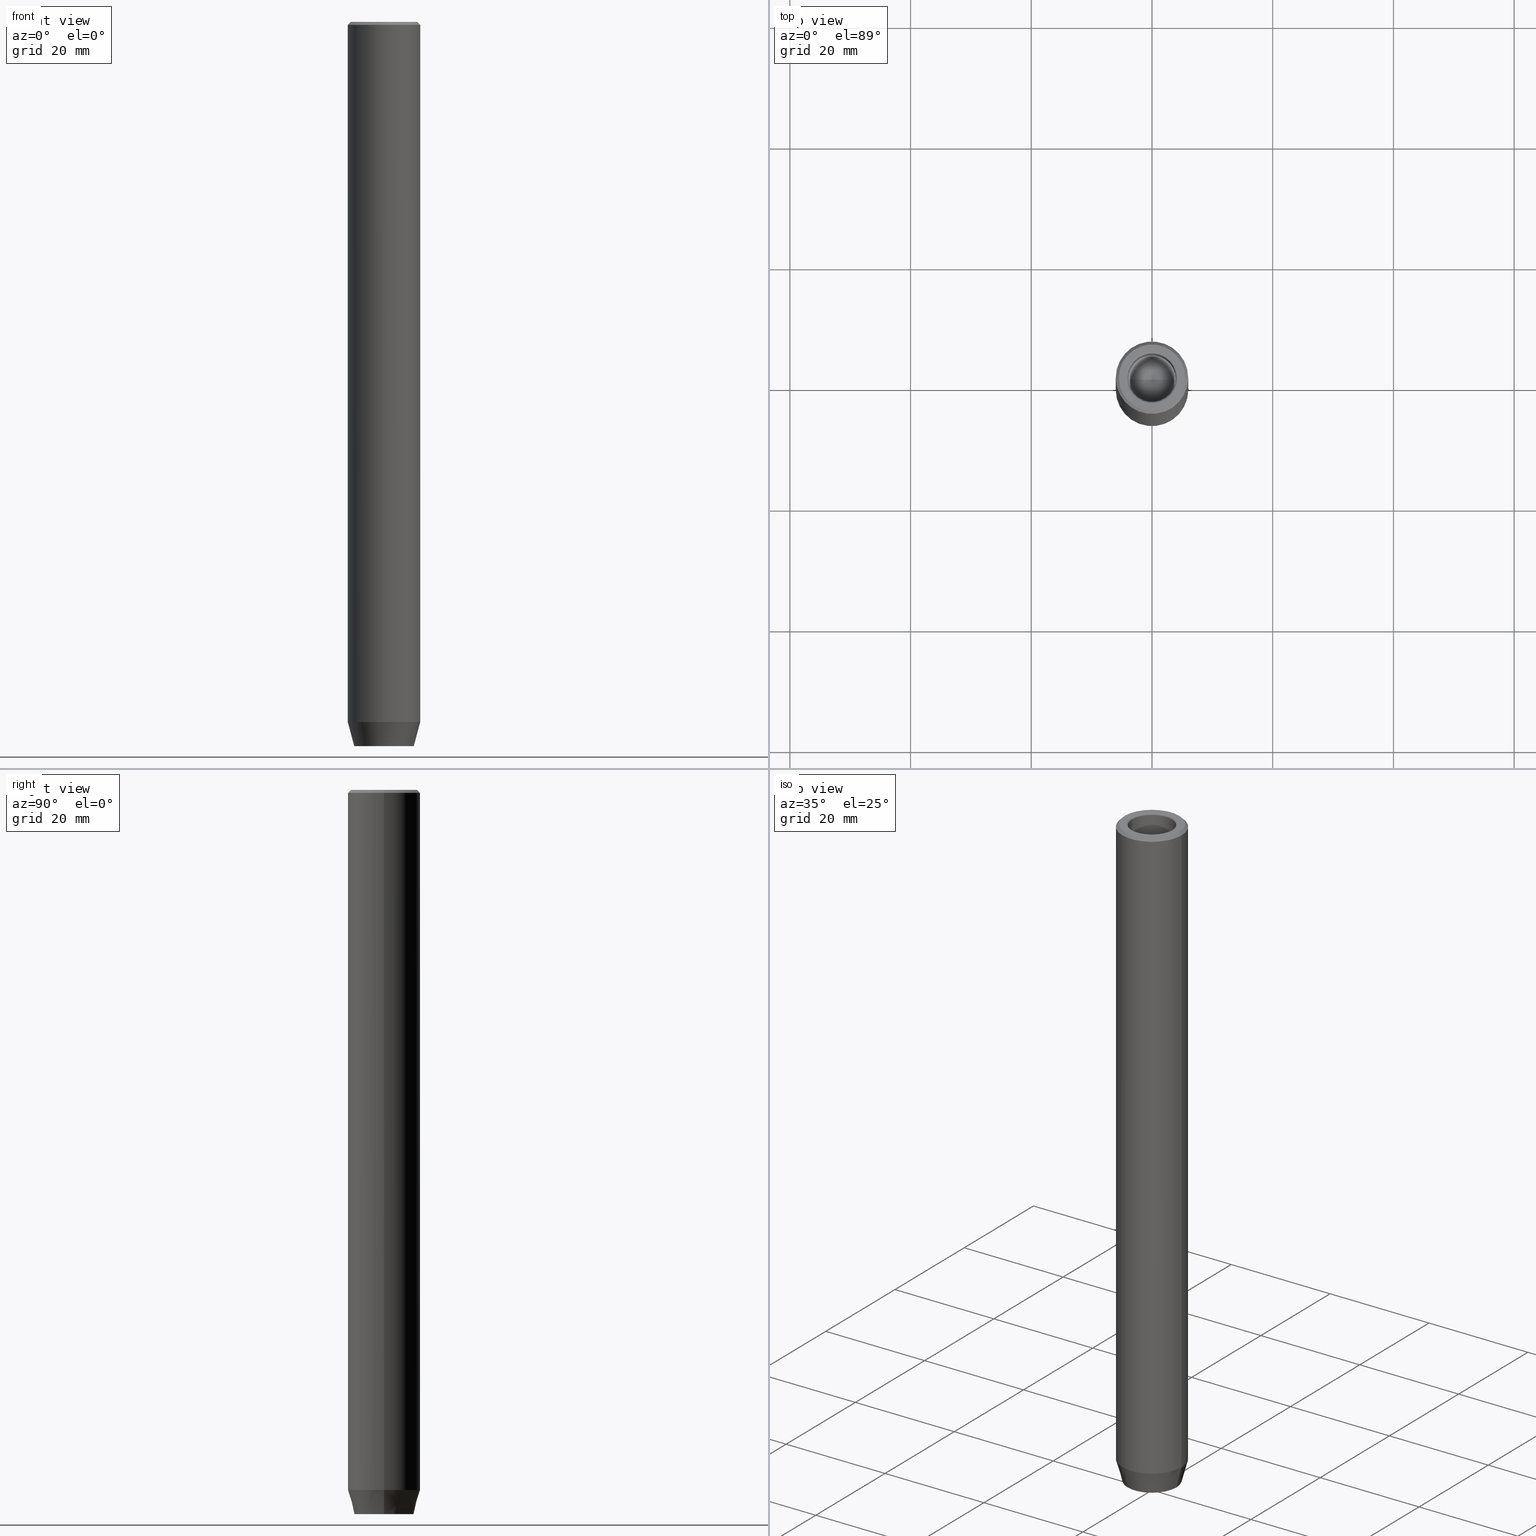
[diagram: canonical four-view strip — front | top / right | iso, engineering-drawing reading convention]
A machine part, canonical four-view strip (front | top / right | iso — engineering-drawing reading convention). The complete STEP part file that produces these views, byte-faithful:
ISO-10303-21;
HEADER;
FILE_DESCRIPTION (( 'STEP AP203' ),
    '1' );
FILE_NAME ('6bb4.STEP',
    '2024-01-02T19:11:56',
    ( '' ),
    ( '' ),
    'SwSTEP 2.0',
    'SolidWorks 2019',
    '' );
FILE_SCHEMA (( 'CONFIG_CONTROL_DESIGN' ));
ENDSEC;

DATA;
#1 = EDGE_CURVE ( 'NONE', #363, #155, #463, .T. ) ;
#2 = DIRECTION ( 'NONE',  ( -0.4999999999999998335, -0.8660254037844387076, 0.000000000000000000 ) ) ;
#3 = VECTOR ( 'NONE', #385, 1000.000000000000000 ) ;
#4 = VERTEX_POINT ( 'NONE', #422 ) ;
#5 = VERTEX_POINT ( 'NONE', #507 ) ;
#6 = CALENDAR_DATE ( 2024, 2, 1 ) ;
#7 = CC_DESIGN_PERSON_AND_ORGANIZATION_ASSIGNMENT ( #535, #344, ( #9 ) ) ;
#8 = ORIENTED_EDGE ( 'NONE', *, *, #506, .F. ) ;
#9 = PRODUCT ( '6bb4', '6bb4', '', ( #333 ) ) ;
#10 = CARTESIAN_POINT ( 'NONE',  ( -5.500000000000031974, 0.000000000000000000, 0.000000000000000000 ) ) ;
#11 = AXIS2_PLACEMENT_3D ( 'NONE', #505, #495, #459 ) ;
#12 = PERSON_AND_ORGANIZATION ( #310, #380 ) ;
#13 = DIRECTION ( 'NONE',  ( -0.8660254037844387076, -0.5000000000000001110, 0.000000000000000000 ) ) ;
#14 = CARTESIAN_POINT ( 'NONE',  ( -3.999999999999995559, 4.898587196589407898E-16, -17.00000000000000000 ) ) ;
#15 = CARTESIAN_POINT ( 'NONE',  ( 0.000000000000000000, 0.000000000000000000, 0.000000000000000000 ) ) ;
#16 = ORIENTED_EDGE ( 'NONE', *, *, #180, .F. ) ;
#17 = PRODUCT_RELATED_PRODUCT_CATEGORY ( 'detail', '', ( #9 ) ) ;
#18 = CARTESIAN_POINT ( 'NONE',  ( 0.000000000000000000, 0.000000000000000000, -0.2999999999999999889 ) ) ;
#19 = DIRECTION ( 'NONE',  ( -0.000000000000000000, -0.000000000000000000, 1.000000000000000000 ) ) ;
#20 = AXIS2_PLACEMENT_3D ( 'NONE', #135, #609, #568 ) ;
#21 = LINE ( 'NONE', #423, #336 ) ;
#22 = CARTESIAN_POINT ( 'NONE',  ( 6.000000000000000000, 0.000000000000000000, -115.9999999999999858 ) ) ;
#23 = ORIENTED_EDGE ( 'NONE', *, *, #554, .T. ) ;
#24 = EDGE_CURVE ( 'NONE', #317, #363, #432, .T. ) ;
#25 = EDGE_CURVE ( 'NONE', #341, #99, #117, .T. ) ;
#26 = ORIENTED_EDGE ( 'NONE', *, *, #339, .T. ) ;
#27 = CARTESIAN_POINT ( 'NONE',  ( 6.505213034913026604E-16, -2.886751345948127767, -114.2000000000000028 ) ) ;
#28 = CARTESIAN_POINT ( 'NONE',  ( 3.999999999999995559, 0.000000000000000000, -17.00000000000000000 ) ) ;
#29 = PLANE ( 'NONE',  #388 ) ;
#30 =( LENGTH_UNIT ( ) NAMED_UNIT ( * ) SI_UNIT ( .MILLI., .METRE. ) );
#31 = AXIS2_PLACEMENT_3D ( 'NONE', #65, #368, #615 ) ;
#32 = CIRCLE ( 'NONE', #131, 0.2999999999999999889 ) ;
#33 = CARTESIAN_POINT ( 'NONE',  ( 0.000000000000000000, 0.000000000000000000, -115.9999999999999858 ) ) ;
#34 = CARTESIAN_POINT ( 'NONE',  ( 0.000000000000000000, 0.000000000000000000, -0.2999999999999999889 ) ) ;
#35 = CARTESIAN_POINT ( 'NONE',  ( -6.000000000000000000, 7.347880794884119736E-16, -115.9999999999999858 ) ) ;
#36 = CARTESIAN_POINT ( 'NONE',  ( 0.000000000000000000, 0.000000000000000000, 0.000000000000000000 ) ) ;
#37 = EDGE_CURVE ( 'NONE', #185, #626, #269, .T. ) ;
#38 = EDGE_CURVE ( 'NONE', #5, #352, #564, .T. ) ;
#39 = DIRECTION ( 'NONE',  ( -0.2588190451025214611, 3.169619151431773569E-17, 0.9659258262890680902 ) ) ;
#40 = PERSON_AND_ORGANIZATION_ROLE ( 'creator' ) ;
#41 = AXIS2_PLACEMENT_3D ( 'NONE', #429, #285, #570 ) ;
#42 = VECTOR ( 'NONE', #120, 1000.000000000000000 ) ;
#43 = APPROVAL_PERSON_ORGANIZATION ( #446, #281, #383 ) ;
#44 = FACE_OUTER_BOUND ( 'NONE', #402, .T. ) ;
#45 = ORIENTED_EDGE ( 'NONE', *, *, #494, .T. ) ;
#46 = APPLICATION_PROTOCOL_DEFINITION ( 'international standard', 'config_control_design', 1994, #105 ) ;
#47 = DIRECTION ( 'NONE',  ( 1.000000000000000000, 0.000000000000000000, 0.000000000000000000 ) ) ;
#48 = EDGE_CURVE ( 'NONE', #352, #255, #113, .T. ) ;
#49 = EDGE_LOOP ( 'NONE', ( #256, #211 ) ) ;
#50 = DIRECTION ( 'NONE',  ( 1.000000000000000000, 0.000000000000000000, 0.000000000000000000 ) ) ;
#51 = ORIENTED_EDGE ( 'NONE', *, *, #415, .T. ) ;
#52 = ORIENTED_EDGE ( 'NONE', *, *, #534, .T. ) ;
#53 = TOROIDAL_SURFACE ( 'NONE', #265, 4.299999999999996270, 0.2999999999999999889 ) ;
#54 = ORIENTED_EDGE ( 'NONE', *, *, #328, .F. ) ;
#55 = ORIENTED_EDGE ( 'NONE', *, *, #235, .T. ) ;
#56 = ADVANCED_FACE ( 'NONE', ( #608 ), #417, .F. ) ;
#57 = ORIENTED_EDGE ( 'NONE', *, *, #548, .F. ) ;
#58 = ORIENTED_EDGE ( 'NONE', *, *, #146, .T. ) ;
#59 = EDGE_LOOP ( 'NONE', ( #26, #611, #270, #556 ) ) ;
#60 = ADVANCED_FACE ( 'NONE', ( #457 ), #371, .F. ) ;
#61 = EDGE_LOOP ( 'NONE', ( #544, #108 ) ) ;
#62 = SECURITY_CLASSIFICATION_LEVEL ( 'unclassified' ) ;
#63 = ORIENTED_EDGE ( 'NONE', *, *, #290, .T. ) ;
#64 = DIRECTION ( 'NONE',  ( -0.000000000000000000, -0.000000000000000000, 1.000000000000000000 ) ) ;
#65 = CARTESIAN_POINT ( 'NONE',  ( 0.000000000000000000, 0.000000000000000000, -115.9999999999999858 ) ) ;
#66 = DIRECTION ( 'NONE',  ( 1.000000000000000000, 0.000000000000000000, 0.000000000000000000 ) ) ;
#67 = ORIENTED_EDGE ( 'NONE', *, *, #262, .T. ) ;
#68 = CYLINDRICAL_SURFACE ( 'NONE', #442, 3.999999999999996447 ) ;
#69 = ORIENTED_EDGE ( 'NONE', *, *, #524, .F. ) ;
#70 = CARTESIAN_POINT ( 'NONE',  ( 5.500000000000031974, 6.735557395310481466E-16, 0.000000000000000000 ) ) ;
#71 = DIRECTION ( 'NONE',  ( 1.000000000000000000, 0.000000000000000000, -0.000000000000000000 ) ) ;
#72 = AXIS2_PLACEMENT_3D ( 'NONE', #239, #335, #525 ) ;
#73 = AXIS2_PLACEMENT_3D ( 'NONE', #588, #92, #50 ) ;
#74 = APPROVAL_PERSON_ORGANIZATION ( #137, #444, #95 ) ;
#75 = DIRECTION ( 'NONE',  ( 0.8660254037844385966, 0.4999999999999998890, 0.000000000000000000 ) ) ;
#76 = ADVANCED_FACE ( 'NONE', ( #212 ), #124, .F. ) ;
#77 = DIRECTION ( 'NONE',  ( -0.000000000000000000, -0.000000000000000000, 1.000000000000000000 ) ) ;
#78 = CARTESIAN_POINT ( 'NONE',  ( -4.299999999999996270, 5.265981236333614526E-16, -0.2999999999999999889 ) ) ;
#79 = EDGE_LOOP ( 'NONE', ( #296, #514, #315, #69 ) ) ;
#80 = CARTESIAN_POINT ( 'NONE',  ( 0.000000000000000000, 0.000000000000000000, 0.000000000000000000 ) ) ;
#81 = APPROVAL_STATUS ( 'not_yet_approved' ) ;
#82 = CYLINDRICAL_SURFACE ( 'NONE', #398, 6.000000000000000000 ) ;
#83 = VERTEX_POINT ( 'NONE', #470 ) ;
#84 = VECTOR ( 'NONE', #511, 1000.000000000000000 ) ;
#85 = LINE ( 'NONE', #148, #221 ) ;
#86 = VECTOR ( 'NONE', #466, 1000.000000000000000 ) ;
#87 = LINE ( 'NONE', #189, #407 ) ;
#88 = APPROVAL_STATUS ( 'not_yet_approved' ) ;
#89 = CARTESIAN_POINT ( 'NONE',  ( -1.249999999999999334, -2.165063509461096825, -120.0000000000000000 ) ) ;
#90 = DIRECTION ( 'NONE',  ( 1.000000000000000000, 0.000000000000000000, 0.000000000000000000 ) ) ;
#91 = ORIENTED_EDGE ( 'NONE', *, *, #607, .T. ) ;
#92 = DIRECTION ( 'NONE',  ( 0.000000000000000000, 0.000000000000000000, -1.000000000000000000 ) ) ;
#93 = ORIENTED_EDGE ( 'NONE', *, *, #554, .F. ) ;
#94 = ORIENTED_EDGE ( 'NONE', *, *, #48, .T. ) ;
#95 = APPROVAL_ROLE ( '' ) ;
#96 = EDGE_CURVE ( 'NONE', #353, #5, #604, .T. ) ;
#97 = VECTOR ( 'NONE', #218, 1000.000000000000000 ) ;
#98 = DIRECTION ( 'NONE',  ( 1.000000000000000000, 0.000000000000000000, 0.000000000000000000 ) ) ;
#99 = VERTEX_POINT ( 'NONE', #22 ) ;
#100 = VERTEX_POINT ( 'NONE', #309 ) ;
#101 = PERSON_AND_ORGANIZATION_ROLE ( 'classification_officer' ) ;
#102 = CARTESIAN_POINT ( 'NONE',  ( 0.000000000000000000, 0.000000000000000000, 0.000000000000000000 ) ) ;
#103 = ORIENTED_EDGE ( 'NONE', *, *, #146, .F. ) ;
#104 = DATE_AND_TIME ( #6, #409 ) ;
#105 = APPLICATION_CONTEXT ( 'configuration controlled 3d designs of mechanical parts and assemblies' ) ;
#106 = ORIENTED_EDGE ( 'NONE', *, *, #586, .F. ) ;
#107 = AXIS2_PLACEMENT_3D ( 'NONE', #633, #440, #214 ) ;
#108 = ORIENTED_EDGE ( 'NONE', *, *, #24, .T. ) ;
#109 = EDGE_CURVE ( 'NONE', #5, #595, #226, .T. ) ;
#110 = DIRECTION ( 'NONE',  ( 1.000000000000000000, 0.000000000000000000, 0.000000000000000000 ) ) ;
#111 = APPLICATION_CONTEXT ( 'configuration controlled 3d designs of mechanical parts and assemblies' ) ;
#112 = FACE_BOUND ( 'NONE', #295, .T. ) ;
#113 = LINE ( 'NONE', #312, #560 ) ;
#114 = LINE ( 'NONE', #447, #314 ) ;
#115 = EDGE_CURVE ( 'NONE', #635, #220, #504, .T. ) ;
#116 = ORIENTED_EDGE ( 'NONE', *, *, #96, .F. ) ;
#117 = CIRCLE ( 'NONE', #31, 6.000000000000000000 ) ;
#118 = DIRECTION ( 'NONE',  ( 0.5000000000000001110, -0.8660254037844387076, 0.000000000000000000 ) ) ;
#119 = CONICAL_SURFACE ( 'NONE', #632, 3.999999999999995559, 1.029744258676653645 ) ;
#120 = DIRECTION ( 'NONE',  ( -0.000000000000000000, -0.000000000000000000, 1.000000000000000000 ) ) ;
#121 = DIRECTION ( 'NONE',  ( -0.000000000000000000, -0.000000000000000000, 1.000000000000000000 ) ) ;
#122 = EDGE_CURVE ( 'NONE', #431, #220, #527, .T. ) ;
#123 = DIRECTION ( 'NONE',  ( 1.224646799147353207E-16, 1.000000000000000000, 0.000000000000000000 ) ) ;
#124 = PLANE ( 'NONE',  #356 ) ;
#125 = ADVANCED_FACE ( 'NONE', ( #484 ), #82, .T. ) ;
#126 = DIRECTION ( 'NONE',  ( 0.7071067811865426878, 8.659560562354873694E-17, -0.7071067811865524577 ) ) ;
#127 = ORIENTED_EDGE ( 'NONE', *, *, #524, .T. ) ;
#128 = EDGE_LOOP ( 'NONE', ( #103, #531, #23, #173 ) ) ;
#129 = CARTESIAN_POINT ( 'NONE',  ( 0.000000000000000000, 0.000000000000000000, 0.000000000000000000 ) ) ;
#130 = CONICAL_SURFACE ( 'NONE', #246, 6.000000000000000000, 0.2617993877991501850 ) ;
#131 = AXIS2_PLACEMENT_3D ( 'NONE', #391, #546, #206 ) ;
#132 = APPROVAL_PERSON_ORGANIZATION ( #12, #257, #167 ) ;
#133 = DIRECTION ( 'NONE',  ( 0.000000000000000000, 0.000000000000000000, -1.000000000000000000 ) ) ;
#134 = PLANE ( 'NONE',  #41 ) ;
#135 = CARTESIAN_POINT ( 'NONE',  ( 0.000000000000000000, 0.000000000000000000, -17.00000000000000000 ) ) ;
#136 = LINE ( 'NONE', #89, #433 ) ;
#137 = PERSON_AND_ORGANIZATION ( #310, #380 ) ;
#138 = EDGE_CURVE ( 'NONE', #431, #4, #520, .T. ) ;
#139 = CARTESIAN_POINT ( 'NONE',  ( -3.999999999999995559, 4.898587196589407898E-16, -17.00000000000000000 ) ) ;
#140 = ADVANCED_FACE ( 'NONE', ( #191 ), #134, .T. ) ;
#141 = AXIS2_PLACEMENT_3D ( 'NONE', #559, #121, #177 ) ;
#142 = VECTOR ( 'NONE', #627, 1000.000000000000000 ) ;
#143 = EDGE_LOOP ( 'NONE', ( #63, #232, #428, #493 ) ) ;
#144 = DIRECTION ( 'NONE',  ( 1.000000000000000000, 0.000000000000000000, 0.000000000000000000 ) ) ;
#145 = FACE_OUTER_BOUND ( 'NONE', #49, .T. ) ;
#146 = EDGE_CURVE ( 'NONE', #406, #341, #382, .T. ) ;
#147 = ADVANCED_FACE ( 'NONE', ( #617 ), #518, .F. ) ;
#148 = CARTESIAN_POINT ( 'NONE',  ( 3.999999999999995559, 0.000000000000000000, -17.00000000000000000 ) ) ;
#149 = CARTESIAN_POINT ( 'NONE',  ( 0.000000000000000000, 0.000000000000000000, -0.4999999999999752975 ) ) ;
#150 = EDGE_LOOP ( 'NONE', ( #57, #201, #533, #51 ) ) ;
#151 = COORDINATED_UNIVERSAL_TIME_OFFSET ( 1, 0, .AHEAD. ) ;
#152 = CIRCLE ( 'NONE', #519, 3.999999999999996447 ) ;
#153 = LOCAL_TIME ( 20, 11, 56.00000000000000000, #458 ) ;
#154 = CARTESIAN_POINT ( 'NONE',  ( 5.500000000000031974, 7.041719095097299615E-16, 0.000000000000000000 ) ) ;
#155 = VERTEX_POINT ( 'NONE', #329 ) ;
#156 = APPROVAL_STATUS ( 'not_yet_approved' ) ;
#157 = PLANE ( 'NONE',  #574 ) ;
#158 = ORIENTED_EDGE ( 'NONE', *, *, #628, .T. ) ;
#159 = PERSON_AND_ORGANIZATION ( #310, #380 ) ;
#160 = EDGE_CURVE ( 'NONE', #353, #394, #87, .T. ) ;
#161 = ORIENTED_EDGE ( 'NONE', *, *, #38, .F. ) ;
#162 = CIRCLE ( 'NONE', #20, 3.999999999999995559 ) ;
#163 = DIRECTION ( 'NONE',  ( -0.000000000000000000, -0.000000000000000000, -1.000000000000000000 ) ) ;
#164 = COORDINATED_UNIVERSAL_TIME_OFFSET ( 1, 0, .AHEAD. ) ;
#165 = ADVANCED_BREP_SHAPE_REPRESENTATION ( '6bb4', ( #485, #325 ), #469 ) ;
#166 = ORIENTED_EDGE ( 'NONE', *, *, #160, .T. ) ;
#167 = APPROVAL_ROLE ( '' ) ;
#168 = CC_DESIGN_PERSON_AND_ORGANIZATION_ASSIGNMENT ( #502, #553, ( #563 ) ) ;
#169 = CARTESIAN_POINT ( 'NONE',  ( -3.999999999999996447, 4.898587196589408884E-16, -0.2999999999999999889 ) ) ;
#170 = ORIENTED_EDGE ( 'NONE', *, *, #37, .F. ) ;
#171 = FACE_OUTER_BOUND ( 'NONE', #217, .T. ) ;
#172 = AXIS2_PLACEMENT_3D ( 'NONE', #129, #479, #435 ) ;
#173 = ORIENTED_EDGE ( 'NONE', *, *, #25, .F. ) ;
#174 = AXIS2_PLACEMENT_3D ( 'NONE', #637, #349, #98 ) ;
#175 = DIRECTION ( 'NONE',  ( -1.000000000000000000, 1.224646799147353207E-16, 0.000000000000000000 ) ) ;
#176 = EDGE_CURVE ( 'NONE', #255, #100, #245, .T. ) ;
#177 = DIRECTION ( 'NONE',  ( 1.000000000000000000, 0.000000000000000000, 0.000000000000000000 ) ) ;
#178 = CARTESIAN_POINT ( 'NONE',  ( 6.000000000000000000, 0.000000000000000000, -115.9999999999999858 ) ) ;
#179 = DIRECTION ( 'NONE',  ( 0.000000000000000000, -0.000000000000000000, 1.000000000000000000 ) ) ;
#180 = EDGE_CURVE ( 'NONE', #363, #317, #450, .T. ) ;
#181 = DIRECTION ( 'NONE',  ( -0.000000000000000000, -0.000000000000000000, 1.000000000000000000 ) ) ;
#182 = DIRECTION ( 'NONE',  ( 1.000000000000000000, 0.000000000000000000, 0.000000000000000000 ) ) ;
#183 = CIRCLE ( 'NONE', #73, 4.299999999999996270 ) ;
#184 = CARTESIAN_POINT ( 'NONE',  ( -2.499999999999999556, 1.443375672974064994, -120.0000000000000000 ) ) ;
#185 = VERTEX_POINT ( 'NONE', #434 ) ;
#186 = DIRECTION ( 'NONE',  ( -0.000000000000000000, -0.000000000000000000, 1.000000000000000000 ) ) ;
#187 = COORDINATED_UNIVERSAL_TIME_OFFSET ( 1, 0, .AHEAD. ) ;
#188 = CC_DESIGN_PERSON_AND_ORGANIZATION_ASSIGNMENT ( #159, #301, ( #563 ) ) ;
#189 = CARTESIAN_POINT ( 'NONE',  ( 0.000000000000000000, 2.886751345948129543, -114.2000000000000028 ) ) ;
#190 = CARTESIAN_POINT ( 'NONE',  ( 2.499999999999999556, 0.000000000000000000, -120.0000000000000000 ) ) ;
#191 = FACE_OUTER_BOUND ( 'NONE', #228, .T. ) ;
#192 = CARTESIAN_POINT ( 'NONE',  ( 1.250000000000000222, 2.165063509461097269, -120.0000000000000000 ) ) ;
#193 = AXIS2_PLACEMENT_3D ( 'NONE', #78, #123, #175 ) ;
#194 = LOCAL_TIME ( 20, 11, 56.00000000000000000, #164 ) ;
#195 = ORIENTED_EDGE ( 'NONE', *, *, #501, .F. ) ;
#196 = CARTESIAN_POINT ( 'NONE',  ( -6.000000000000000000, 7.347880794884119736E-16, -115.9999999999999858 ) ) ;
#197 = ORIENTED_EDGE ( 'NONE', *, *, #1, .T. ) ;
#198 = PRODUCT_DEFINITION ( 'NEZN�M�', '', #563, #513 ) ;
#199 = DIRECTION ( 'NONE',  ( -0.000000000000000000, -0.000000000000000000, 1.000000000000000000 ) ) ;
#200 = DIRECTION ( 'NONE',  ( 1.000000000000000000, 0.000000000000000000, 0.000000000000000000 ) ) ;
#201 = ORIENTED_EDGE ( 'NONE', *, *, #122, .F. ) ;
#202 = DIRECTION ( 'NONE',  ( 0.8660254037844385966, -0.4999999999999999445, 0.000000000000000000 ) ) ;
#203 = CARTESIAN_POINT ( 'NONE',  ( 2.499999999999999556, -1.443375672974064550, -114.2000000000000028 ) ) ;
#204 = ORIENTED_EDGE ( 'NONE', *, *, #109, .T. ) ;
#205 = CIRCLE ( 'NONE', #107, 4.928203230275505220 ) ;
#206 = DIRECTION ( 'NONE',  ( 0.000000000000000000, 0.000000000000000000, -1.000000000000000000 ) ) ;
#207 = ORIENTED_EDGE ( 'NONE', *, *, #487, .F. ) ;
#208 = ORIENTED_EDGE ( 'NONE', *, *, #109, .F. ) ;
#209 = ORIENTED_EDGE ( 'NONE', *, *, #328, .T. ) ;
#210 = AXIS2_PLACEMENT_3D ( 'NONE', #233, #629, #144 ) ;
#211 = ORIENTED_EDGE ( 'NONE', *, *, #348, .F. ) ;
#212 = FACE_OUTER_BOUND ( 'NONE', #547, .T. ) ;
#213 = ADVANCED_FACE ( 'NONE', ( #579, #620 ), #476, .T. ) ;
#214 = DIRECTION ( 'NONE',  ( 1.000000000000000000, 0.000000000000000000, 0.000000000000000000 ) ) ;
#215 = DIRECTION ( 'NONE',  ( -0.8571673007021118895, 1.049727191138618079E-16, 0.5150380749100549327 ) ) ;
#216 = DIRECTION ( 'NONE',  ( -0.000000000000000000, -0.000000000000000000, 1.000000000000000000 ) ) ;
#217 = EDGE_LOOP ( 'NONE', ( #551, #16, #197, #358 ) ) ;
#218 = DIRECTION ( 'NONE',  ( 0.2588190451025214611, 0.000000000000000000, 0.9659258262890680902 ) ) ;
#219 = EDGE_LOOP ( 'NONE', ( #207, #260, #45, #67 ) ) ;
#220 = VERTEX_POINT ( 'NONE', #139 ) ;
#221 = VECTOR ( 'NONE', #636, 1000.000000000000000 ) ;
#222 = DIRECTION ( 'NONE',  ( -0.8660254037844387076, -0.5000000000000001110, 0.000000000000000000 ) ) ;
#223 = CC_DESIGN_APPROVAL ( #444, ( #198 ) ) ;
#224 = DIRECTION ( 'NONE',  ( -0.000000000000000000, -0.000000000000000000, 1.000000000000000000 ) ) ;
#225 = ADVANCED_FACE ( 'NONE', ( #374 ), #130, .T. ) ;
#226 = LINE ( 'NONE', #426, #234 ) ;
#227 = LINE ( 'NONE', #190, #3 ) ;
#228 = EDGE_LOOP ( 'NONE', ( #52, #250, #472, #94, #584, #475 ) ) ;
#229 = FACE_OUTER_BOUND ( 'NONE', #436, .T. ) ;
#230 = FACE_OUTER_BOUND ( 'NONE', #150, .T. ) ;
#231 = EDGE_LOOP ( 'NONE', ( #55, #452, #253, #91 ) ) ;
#232 = ORIENTED_EDGE ( 'NONE', *, *, #176, .F. ) ;
#233 = CARTESIAN_POINT ( 'NONE',  ( 0.000000000000000000, 0.000000000000000000, -17.00000000000000000 ) ) ;
#234 = VECTOR ( 'NONE', #163, 1000.000000000000000 ) ;
#235 = EDGE_CURVE ( 'NONE', #499, #394, #384, .T. ) ;
#236 = TOROIDAL_SURFACE ( 'NONE', #623, 4.299999999999996270, 0.2999999999999999889 ) ;
#237 = CC_DESIGN_SECURITY_CLASSIFICATION ( #288, ( #563 ) ) ;
#238 = DATE_AND_TIME ( #291, #266 ) ;
#239 = CARTESIAN_POINT ( 'NONE',  ( 0.000000000000000000, 0.000000000000000000, -17.00000000000000000 ) ) ;
#240 = CARTESIAN_POINT ( 'NONE',  ( -4.827031923828040939E-15, 0.000000000000000000, -19.40344247611024286 ) ) ;
#241 = ADVANCED_FACE ( 'NONE', ( #532 ), #522, .T. ) ;
#242 = DIRECTION ( 'NONE',  ( -0.000000000000000000, -0.000000000000000000, 1.000000000000000000 ) ) ;
#243 = ADVANCED_FACE ( 'NONE', ( #387 ), #29, .F. ) ;
#244 = EDGE_CURVE ( 'NONE', #100, #626, #136, .T. ) ;
#245 = LINE ( 'NONE', #289, #441 ) ;
#246 = AXIS2_PLACEMENT_3D ( 'NONE', #33, #324, #625 ) ;
#247 = CALENDAR_DATE ( 2024, 2, 1 ) ;
#248 = VECTOR ( 'NONE', #75, 1000.000000000000227 ) ;
#249 = CARTESIAN_POINT ( 'NONE',  ( 0.000000000000000000, 4.928203230275505220, -120.0000000000000000 ) ) ;
#250 = ORIENTED_EDGE ( 'NONE', *, *, #96, .T. ) ;
#251 = DATE_TIME_ROLE ( 'creation_date' ) ;
#252 = FACE_OUTER_BOUND ( 'NONE', #128, .T. ) ;
#253 = ORIENTED_EDGE ( 'NONE', *, *, #534, .F. ) ;
#254 = CARTESIAN_POINT ( 'NONE',  ( -2.500000000000000000, 7.511572993685795156E-16, -120.0000000000000000 ) ) ;
#255 = VERTEX_POINT ( 'NONE', #27 ) ;
#256 = ORIENTED_EDGE ( 'NONE', *, *, #308, .F. ) ;
#257 = APPROVAL ( #156, 'NEUR�EN�' ) ;
#258 = ADVANCED_FACE ( 'NONE', ( #229 ), #528, .T. ) ;
#259 = EDGE_LOOP ( 'NONE', ( #343, #305 ) ) ;
#260 = ORIENTED_EDGE ( 'NONE', *, *, #25, .T. ) ;
#261 = EDGE_LOOP ( 'NONE', ( #8, #569, #127, #445 ) ) ;
#262 = EDGE_CURVE ( 'NONE', #377, #155, #408, .T. ) ;
#263 = ORIENTED_EDGE ( 'NONE', *, *, #244, .T. ) ;
#264 = DIRECTION ( 'NONE',  ( 1.000000000000000000, 0.000000000000000000, 0.000000000000000000 ) ) ;
#265 = AXIS2_PLACEMENT_3D ( 'NONE', #18, #418, #515 ) ;
#266 = LOCAL_TIME ( 20, 11, 56.00000000000000000, #151 ) ;
#267 = CARTESIAN_POINT ( 'NONE',  ( 1.250000000000000222, 2.165063509461097269, -114.2000000000000028 ) ) ;
#268 = CARTESIAN_POINT ( 'NONE',  ( 1.250000000000000222, 2.165063509461097269, -114.2000000000000028 ) ) ;
#269 = LINE ( 'NONE', #555, #273 ) ;
#270 = ORIENTED_EDGE ( 'NONE', *, *, #303, .T. ) ;
#271 = ADVANCED_FACE ( 'NONE', ( #536 ), #393, .F. ) ;
#272 = DIRECTION ( 'NONE',  ( -1.000000000000000000, 0.000000000000000000, 0.000000000000000000 ) ) ;
#273 = VECTOR ( 'NONE', #413, 1000.000000000000000 ) ;
#274 = AXIS2_PLACEMENT_3D ( 'NONE', #268, #613, #565 ) ;
#275 = DIRECTION ( 'NONE',  ( -0.000000000000000000, 0.000000000000000000, -1.000000000000000000 ) ) ;
#276 = CARTESIAN_POINT ( 'NONE',  ( 6.000000000000000000, 0.000000000000000000, 0.000000000000000000 ) ) ;
#277 = ORIENTED_EDGE ( 'NONE', *, *, #176, .T. ) ;
#278 = DIRECTION ( 'NONE',  ( -3.004629197474318063E-16, -1.000000000000000000, 0.000000000000000000 ) ) ;
#279 = CARTESIAN_POINT ( 'NONE',  ( 0.000000000000000000, 0.000000000000000000, -17.00000000000000000 ) ) ;
#280 = ORIENTED_EDGE ( 'NONE', *, *, #607, .F. ) ;
#281 = APPROVAL ( #81, 'NEUR�EN�' ) ;
#282 = CARTESIAN_POINT ( 'NONE',  ( 0.000000000000000000, 0.000000000000000000, 0.000000000000000000 ) ) ;
#283 = ADVANCED_FACE ( 'NONE', ( #252 ), #323, .T. ) ;
#284 = DIRECTION ( 'NONE',  ( 3.004629197474318063E-16, 1.000000000000000000, 0.000000000000000000 ) ) ;
#285 = DIRECTION ( 'NONE',  ( 0.000000000000000000, 0.000000000000000000, -1.000000000000000000 ) ) ;
#286 = VECTOR ( 'NONE', #39, 1000.000000000000000 ) ;
#287 = VECTOR ( 'NONE', #492, 1000.000000000000000 ) ;
#288 = SECURITY_CLASSIFICATION ( '', '', #62 ) ;
#289 = CARTESIAN_POINT ( 'NONE',  ( 6.505213034913026604E-16, -2.886751345948127767, -114.2000000000000028 ) ) ;
#290 = EDGE_CURVE ( 'NONE', #599, #100, #114, .T. ) ;
#291 = CALENDAR_DATE ( 2024, 2, 1 ) ;
#292 = CARTESIAN_POINT ( 'NONE',  ( 3.999999999999996447, 0.000000000000000000, 0.000000000000000000 ) ) ;
#293 = APPROVAL_DATE_TIME ( #238, #444 ) ;
#294 = CARTESIAN_POINT ( 'NONE',  ( 0.000000000000000000, 0.000000000000000000, -115.9999999999999858 ) ) ;
#295 = EDGE_LOOP ( 'NONE', ( #334, #54, #491, #575, #106, #619 ) ) ;
#296 = ORIENTED_EDGE ( 'NONE', *, *, #467, .F. ) ;
#297 = DATE_AND_TIME ( #247, #510 ) ;
#298 = AXIS2_PLACEMENT_3D ( 'NONE', #294, #509, #264 ) ;
#299 = DIRECTION ( 'NONE',  ( 0.000000000000000000, 0.000000000000000000, -1.000000000000000000 ) ) ;
#300 = EDGE_LOOP ( 'NONE', ( #373, #208, #116, #166 ) ) ;
#301 = PERSON_AND_ORGANIZATION_ROLE ( 'design_supplier' ) ;
#302 = LINE ( 'NONE', #254, #287 ) ;
#303 = EDGE_CURVE ( 'NONE', #155, #377, #306, .T. ) ;
#304 = VERTEX_POINT ( 'NONE', #539 ) ;
#305 = ORIENTED_EDGE ( 'NONE', *, *, #318, .T. ) ;
#306 = CIRCLE ( 'NONE', #550, 6.000000000000000000 ) ;
#307 = ORIENTED_EDGE ( 'NONE', *, *, #308, .T. ) ;
#308 = EDGE_CURVE ( 'NONE', #83, #406, #561, .T. ) ;
#309 = CARTESIAN_POINT ( 'NONE',  ( 6.505213034913026604E-16, -2.886751345948127767, -120.0000000000000000 ) ) ;
#310 = PERSON ( 'NEUR�EN�', 'NEUR�EN�', 'NEUR�EN�', ('NEUR�EN�'), ('NEUR�EN�'), ('NEUR�EN�') ) ;
#311 = CARTESIAN_POINT ( 'NONE',  ( 0.000000000000000000, 2.886751345948129543, -120.0000000000000000 ) ) ;
#312 = CARTESIAN_POINT ( 'NONE',  ( 1.249999999999999778, -2.165063509461096380, -114.2000000000000028 ) ) ;
#313 = PLANE ( 'NONE',  #366 ) ;
#314 = VECTOR ( 'NONE', #13, 999.9999999999998863 ) ;
#315 = ORIENTED_EDGE ( 'NONE', *, *, #375, .T. ) ;
#316 = LINE ( 'NONE', #178, #97 ) ;
#317 = VERTEX_POINT ( 'NONE', #154 ) ;
#318 = EDGE_CURVE ( 'NONE', #404, #503, #378, .T. ) ;
#319 = CARTESIAN_POINT ( 'NONE',  ( -1.250000000000000000, 2.165063509461097269, -114.2000000000000028 ) ) ;
#320 = CARTESIAN_POINT ( 'NONE',  ( 1.249999999999999778, -2.165063509461096380, -114.2000000000000028 ) ) ;
#321 = FACE_OUTER_BOUND ( 'NONE', #350, .T. ) ;
#322 = VECTOR ( 'NONE', #215, 1000.000000000000000 ) ;
#323 = CONICAL_SURFACE ( 'NONE', #298, 6.000000000000000000, 0.2617993877991501850 ) ;
#324 = DIRECTION ( 'NONE',  ( -0.000000000000000000, -0.000000000000000000, 1.000000000000000000 ) ) ;
#325 = AXIS2_PLACEMENT_3D ( 'NONE', #36, #340, #90 ) ;
#326 = LINE ( 'NONE', #517, #357 ) ;
#327 = CC_DESIGN_PERSON_AND_ORGANIZATION_ASSIGNMENT ( #486, #40, ( #198 ) ) ;
#328 = EDGE_CURVE ( 'NONE', #626, #499, #302, .T. ) ;
#329 = CARTESIAN_POINT ( 'NONE',  ( -6.000000000000000000, 7.347880794884119736E-16, -0.4999999999999752975 ) ) ;
#330 = CARTESIAN_POINT ( 'NONE',  ( 0.000000000000000000, 0.000000000000000000, -0.2999999999999999889 ) ) ;
#331 = CARTESIAN_POINT ( 'NONE',  ( 0.000000000000000000, 0.000000000000000000, 0.000000000000000000 ) ) ;
#332 = ORIENTED_EDGE ( 'NONE', *, *, #318, .F. ) ;
#333 = MECHANICAL_CONTEXT ( 'NONE', #111, 'mechanical' ) ;
#334 = ORIENTED_EDGE ( 'NONE', *, *, #235, .F. ) ;
#335 = DIRECTION ( 'NONE',  ( -0.000000000000000000, -0.000000000000000000, 1.000000000000000000 ) ) ;
#336 = VECTOR ( 'NONE', #521, 1000.000000000000114 ) ;
#337 = CC_DESIGN_APPROVAL ( #281, ( #563 ) ) ;
#338 = DIRECTION ( 'NONE',  ( -0.000000000000000000, -0.000000000000000000, -1.000000000000000000 ) ) ;
#339 = EDGE_CURVE ( 'NONE', #99, #341, #529, .T. ) ;
#340 = DIRECTION ( 'NONE',  ( 0.000000000000000000, 0.000000000000000000, 1.000000000000000000 ) ) ;
#341 = VERTEX_POINT ( 'NONE', #196 ) ;
#342 = DIRECTION ( 'NONE',  ( 0.000000000000000000, 0.000000000000000000, -1.000000000000000000 ) ) ;
#343 = ORIENTED_EDGE ( 'NONE', *, *, #355, .T. ) ;
#344 = PERSON_AND_ORGANIZATION_ROLE ( 'design_owner' ) ;
#345 = DIRECTION ( 'NONE',  ( 0.000000000000000000, 0.000000000000000000, -1.000000000000000000 ) ) ;
#346 = EDGE_LOOP ( 'NONE', ( #638, #158, #354 ) ) ;
#347 = VECTOR ( 'NONE', #202, 1000.000000000000114 ) ;
#348 = EDGE_CURVE ( 'NONE', #406, #83, #205, .T. ) ;
#349 = DIRECTION ( 'NONE',  ( -0.000000000000000000, -0.000000000000000000, 1.000000000000000000 ) ) ;
#350 = EDGE_LOOP ( 'NONE', ( #332, #591, #601, #454 ) ) ;
#351 = CARTESIAN_POINT ( 'NONE',  ( -5.500000000000031974, 0.000000000000000000, 0.000000000000000000 ) ) ;
#352 = VERTEX_POINT ( 'NONE', #203 ) ;
#353 = VERTEX_POINT ( 'NONE', #590 ) ;
#354 = ORIENTED_EDGE ( 'NONE', *, *, #122, .T. ) ;
#355 = EDGE_CURVE ( 'NONE', #503, #404, #183, .T. ) ;
#356 = AXIS2_PLACEMENT_3D ( 'NONE', #516, #71, #275 ) ;
#357 = VECTOR ( 'NONE', #224, 1000.000000000000000 ) ;
#358 = ORIENTED_EDGE ( 'NONE', *, *, #262, .F. ) ;
#359 = CALENDAR_DATE ( 2024, 2, 1 ) ;
#360 = PRODUCT_DEFINITION_SHAPE ( 'NONE', 'NONE',  #198 ) ;
#361 = CARTESIAN_POINT ( 'NONE',  ( 0.000000000000000000, 0.000000000000000000, 0.000000000000000000 ) ) ;
#362 = CARTESIAN_POINT ( 'NONE',  ( -4.299999999999996270, 5.265981236333614526E-16, 0.000000000000000000 ) ) ;
#363 = VERTEX_POINT ( 'NONE', #351 ) ;
#364 = DIRECTION ( 'NONE',  ( -0.000000000000000000, -0.000000000000000000, 1.000000000000000000 ) ) ;
#365 = CC_DESIGN_DATE_AND_TIME_ASSIGNMENT ( #104, #399, ( #288 ) ) ;
#366 = AXIS2_PLACEMENT_3D ( 'NONE', #249, #342, #606 ) ;
#367 = UNCERTAINTY_MEASURE_WITH_UNIT (LENGTH_MEASURE( 1.000000000000000082E-05 ), #30, 'distance_accuracy_value', 'NONE');
#368 = DIRECTION ( 'NONE',  ( -0.000000000000000000, -0.000000000000000000, 1.000000000000000000 ) ) ;
#369 = ADVANCED_FACE ( 'NONE', ( #44 ), #157, .F. ) ;
#370 = DIRECTION ( 'NONE',  ( 1.000000000000000000, 0.000000000000000000, 0.000000000000000000 ) ) ;
#371 = PLANE ( 'NONE',  #489 ) ;
#372 = DIRECTION ( 'NONE',  ( -0.000000000000000000, -0.000000000000000000, 1.000000000000000000 ) ) ;
#373 = ORIENTED_EDGE ( 'NONE', *, *, #639, .T. ) ;
#374 = FACE_OUTER_BOUND ( 'NONE', #477, .T. ) ;
#375 = EDGE_CURVE ( 'NONE', #503, #4, #32, .T. ) ;
#376 = CARTESIAN_POINT ( 'NONE',  ( 2.499999999999999556, -1.443375672974064550, -114.2000000000000028 ) ) ;
#377 = VERTEX_POINT ( 'NONE', #401 ) ;
#378 = CIRCLE ( 'NONE', #389, 4.299999999999996270 ) ;
#379 = CARTESIAN_POINT ( 'NONE',  ( -1.250000000000000000, 2.165063509461097269, -120.0000000000000000 ) ) ;
#380 = ORGANIZATION ( 'NEUR�EN�', 'NEUR�EN�', '' ) ;
#381 = LINE ( 'NONE', #376, #508 ) ;
#382 = LINE ( 'NONE', #35, #286 ) ;
#383 = APPROVAL_ROLE ( '' ) ;
#384 = LINE ( 'NONE', #379, #600 ) ;
#385 = DIRECTION ( 'NONE',  ( 0.000000000000000000, -1.000000000000000000, 0.000000000000000000 ) ) ;
#386 = ADVANCED_FACE ( 'NONE', ( #112, #145 ), #313, .T. ) ;
#387 = FACE_OUTER_BOUND ( 'NONE', #456, .T. ) ;
#388 = AXIS2_PLACEMENT_3D ( 'NONE', #576, #482, #278 ) ;
#389 = AXIS2_PLACEMENT_3D ( 'NONE', #102, #597, #543 ) ;
#390 = LINE ( 'NONE', #192, #347 ) ;
#391 = CARTESIAN_POINT ( 'NONE',  ( 4.299999999999996270, 0.000000000000000000, -0.2999999999999999889 ) ) ;
#392 = DIRECTION ( 'NONE',  ( 1.000000000000000000, 0.000000000000000000, 0.000000000000000000 ) ) ;
#393 = PLANE ( 'NONE',  #11 ) ;
#394 = VERTEX_POINT ( 'NONE', #311 ) ;
#395 = CC_DESIGN_DATE_AND_TIME_ASSIGNMENT ( #297, #251, ( #198 ) ) ;
#396 = DIRECTION ( 'NONE',  ( -1.000000000000000000, 0.000000000000000000, 0.000000000000000000 ) ) ;
#397 = VERTEX_POINT ( 'NONE', #169 ) ;
#398 = AXIS2_PLACEMENT_3D ( 'NONE', #80, #186, #473 ) ;
#399 = DATE_TIME_ROLE ( 'classification_date' ) ;
#400 = AXIS2_PLACEMENT_3D ( 'NONE', #149, #299, #47 ) ;
#401 = CARTESIAN_POINT ( 'NONE',  ( 6.000000000000000000, 0.000000000000000000, -0.4999999999999752975 ) ) ;
#402 = EDGE_LOOP ( 'NONE', ( #263, #170, #195, #277 ) ) ;
#403 = APPROVAL_DATE_TIME ( #411, #257 ) ;
#404 = VERTEX_POINT ( 'NONE', #362 ) ;
#405 = SHAPE_DEFINITION_REPRESENTATION ( #360, #165 ) ;
#406 = VERTEX_POINT ( 'NONE', #557 ) ;
#407 = VECTOR ( 'NONE', #338, 1000.000000000000000 ) ;
#408 = CIRCLE ( 'NONE', #400, 6.000000000000000000 ) ;
#409 = LOCAL_TIME ( 20, 11, 56.00000000000000000, #603 ) ;
#410 = DIRECTION ( 'NONE',  ( 0.000000000000000000, -1.000000000000000000, 0.000000000000000000 ) ) ;
#411 = DATE_AND_TIME ( #359, #194 ) ;
#412 = DIRECTION ( 'NONE',  ( 0.8660254037844387076, -0.4999999999999998335, 0.000000000000000000 ) ) ;
#413 = DIRECTION ( 'NONE',  ( -0.000000000000000000, -0.000000000000000000, -1.000000000000000000 ) ) ;
#414 = ORIENTED_EDGE ( 'NONE', *, *, #506, .T. ) ;
#415 = EDGE_CURVE ( 'NONE', #4, #397, #541, .T. ) ;
#416 = FACE_OUTER_BOUND ( 'NONE', #300, .T. ) ;
#417 = CYLINDRICAL_SURFACE ( 'NONE', #141, 3.999999999999996447 ) ;
#418 = DIRECTION ( 'NONE',  ( -0.000000000000000000, -0.000000000000000000, 1.000000000000000000 ) ) ;
#419 = AXIS2_PLACEMENT_3D ( 'NONE', #361, #19, #110 ) ;
#420 = VECTOR ( 'NONE', #126, 1000.000000000000000 ) ;
#421 = CC_DESIGN_APPROVAL ( #257, ( #288 ) ) ;
#422 = CARTESIAN_POINT ( 'NONE',  ( 3.999999999999996447, 0.000000000000000000, -0.2999999999999999889 ) ) ;
#423 = CARTESIAN_POINT ( 'NONE',  ( -1.249999999999999334, -2.165063509461096825, -114.2000000000000028 ) ) ;
#424 = EDGE_CURVE ( 'NONE', #352, #599, #381, .T. ) ;
#425 = ADVANCED_FACE ( 'NONE', ( #427 ), #119, .F. ) ;
#426 = CARTESIAN_POINT ( 'NONE',  ( 2.499999999999999556, 1.443375672974065216, -114.2000000000000028 ) ) ;
#427 = FACE_OUTER_BOUND ( 'NONE', #538, .T. ) ;
#428 = ORIENTED_EDGE ( 'NONE', *, *, #48, .F. ) ;
#429 = CARTESIAN_POINT ( 'NONE',  ( 0.000000000000000000, 0.000000000000000000, -114.2000000000000028 ) ) ;
#430 = LINE ( 'NONE', #276, #86 ) ;
#431 = VERTEX_POINT ( 'NONE', #28 ) ;
#432 = CIRCLE ( 'NONE', #419, 5.500000000000031974 ) ;
#433 = VECTOR ( 'NONE', #438, 1000.000000000000114 ) ;
#434 = CARTESIAN_POINT ( 'NONE',  ( -2.500000000000000444, -1.443375672974064106, -114.2000000000000028 ) ) ;
#435 = DIRECTION ( 'NONE',  ( 1.000000000000000000, 0.000000000000000000, 0.000000000000000000 ) ) ;
#436 = EDGE_LOOP ( 'NONE', ( #614, #537, #552, #496 ) ) ;
#437 =( NAMED_UNIT ( * ) SI_UNIT ( $, .STERADIAN. ) SOLID_ANGLE_UNIT ( ) );
#438 = DIRECTION ( 'NONE',  ( -0.8660254037844387076, 0.4999999999999997780, 0.000000000000000000 ) ) ;
#439 = LINE ( 'NONE', #580, #142 ) ;
#440 = DIRECTION ( 'NONE',  ( -0.000000000000000000, -0.000000000000000000, 1.000000000000000000 ) ) ;
#441 = VECTOR ( 'NONE', #530, 1000.000000000000000 ) ;
#442 = AXIS2_PLACEMENT_3D ( 'NONE', #15, #216, #572 ) ;
#443 = DIRECTION ( 'NONE',  ( 0.000000000000000000, 0.000000000000000000, -1.000000000000000000 ) ) ;
#444 = APPROVAL ( #88, 'NEUR�EN�' ) ;
#445 = ORIENTED_EDGE ( 'NONE', *, *, #138, .F. ) ;
#446 = PERSON_AND_ORGANIZATION ( #310, #380 ) ;
#447 = CARTESIAN_POINT ( 'NONE',  ( 1.249999999999999778, -2.165063509461096380, -120.0000000000000000 ) ) ;
#448 = ORIENTED_EDGE ( 'NONE', *, *, #37, .T. ) ;
#449 = CARTESIAN_POINT ( 'NONE',  ( -1.249999999999999334, -2.165063509461096825, -114.2000000000000028 ) ) ;
#450 = CIRCLE ( 'NONE', #172, 5.500000000000031974 ) ;
#451 = ORIENTED_EDGE ( 'NONE', *, *, #586, .T. ) ;
#452 = ORIENTED_EDGE ( 'NONE', *, *, #160, .F. ) ;
#453 = AXIS2_PLACEMENT_3D ( 'NONE', #331, #443, #396 ) ;
#454 = ORIENTED_EDGE ( 'NONE', *, *, #375, .F. ) ;
#455 = APPROVAL_DATE_TIME ( #605, #281 ) ;
#456 = EDGE_LOOP ( 'NONE', ( #209, #280, #549, #448 ) ) ;
#457 = FACE_OUTER_BOUND ( 'NONE', #143, .T. ) ;
#458 = COORDINATED_UNIVERSAL_TIME_OFFSET ( 1, 0, .AHEAD. ) ;
#459 = DIRECTION ( 'NONE',  ( -0.8660254037844385966, -0.4999999999999999445, 0.000000000000000000 ) ) ;
#460 = DIRECTION ( 'NONE',  ( 0.8660254037844385966, -0.4999999999999999445, 0.000000000000000000 ) ) ;
#461 = ADVANCED_FACE ( 'NONE', ( #230 ), #68, .F. ) ;
#462 = LINE ( 'NONE', #319, #248 ) ;
#463 = LINE ( 'NONE', #10, #84 ) ;
#464 = LINE ( 'NONE', #70, #420 ) ;
#465 = CARTESIAN_POINT ( 'NONE',  ( 2.499999999999999556, 0.000000000000000000, -114.2000000000000028 ) ) ;
#466 = DIRECTION ( 'NONE',  ( -0.000000000000000000, -0.000000000000000000, 1.000000000000000000 ) ) ;
#467 = EDGE_CURVE ( 'NONE', #404, #397, #594, .T. ) ;
#468 = AXIS2_PLACEMENT_3D ( 'NONE', #488, #372, #618 ) ;
#469 =( GEOMETRIC_REPRESENTATION_CONTEXT ( 3 ) GLOBAL_UNCERTAINTY_ASSIGNED_CONTEXT ( ( #367 ) ) GLOBAL_UNIT_ASSIGNED_CONTEXT ( ( #30, #587, #437 ) ) REPRESENTATION_CONTEXT ( 'NONE', 'WORKASPACE' ) );
#470 = CARTESIAN_POINT ( 'NONE',  ( 4.928203230275505220, 0.000000000000000000, -120.0000000000000000 ) ) ;
#471 = LINE ( 'NONE', #562, #42 ) ;
#472 = ORIENTED_EDGE ( 'NONE', *, *, #38, .T. ) ;
#473 = DIRECTION ( 'NONE',  ( 1.000000000000000000, 0.000000000000000000, 0.000000000000000000 ) ) ;
#474 = PLANE ( 'NONE',  #274 ) ;
#475 = ORIENTED_EDGE ( 'NONE', *, *, #621, .T. ) ;
#476 = PLANE ( 'NONE',  #498 ) ;
#477 = EDGE_LOOP ( 'NONE', ( #307, #58, #610, #93 ) ) ;
#478 = AXIS2_PLACEMENT_3D ( 'NONE', #634, #64, #66 ) ;
#479 = DIRECTION ( 'NONE',  ( -0.000000000000000000, -0.000000000000000000, 1.000000000000000000 ) ) ;
#480 = ADVANCED_FACE ( 'NONE', ( #171 ), #612, .T. ) ;
#481 = ADVANCED_FACE ( 'NONE', ( #416 ), #474, .F. ) ;
#482 = DIRECTION ( 'NONE',  ( -1.000000000000000000, 3.004629197474318063E-16, 0.000000000000000000 ) ) ;
#483 = CARTESIAN_POINT ( 'NONE',  ( -2.500000000000000000, 7.511572993685795156E-16, -114.2000000000000028 ) ) ;
#484 = FACE_OUTER_BOUND ( 'NONE', #59, .T. ) ;
#485 = MANIFOLD_SOLID_BREP ( 'Odebrat vysunut�m1', #540 ) ;
#486 = PERSON_AND_ORGANIZATION ( #310, #380 ) ;
#487 = EDGE_CURVE ( 'NONE', #341, #155, #326, .T. ) ;
#488 = CARTESIAN_POINT ( 'NONE',  ( 0.000000000000000000, 0.000000000000000000, -0.2999999999999999889 ) ) ;
#489 = AXIS2_PLACEMENT_3D ( 'NONE', #320, #118, #566 ) ;
#490 = AXIS2_PLACEMENT_3D ( 'NONE', #282, #77, #182 ) ;
#491 = ORIENTED_EDGE ( 'NONE', *, *, #244, .F. ) ;
#492 = DIRECTION ( 'NONE',  ( 3.004629197474318063E-16, 1.000000000000000000, 0.000000000000000000 ) ) ;
#493 = ORIENTED_EDGE ( 'NONE', *, *, #424, .T. ) ;
#494 = EDGE_CURVE ( 'NONE', #99, #377, #430, .T. ) ;
#495 = DIRECTION ( 'NONE',  ( -0.5000000000000000000, 0.8660254037844387076, 0.000000000000000000 ) ) ;
#496 = ORIENTED_EDGE ( 'NONE', *, *, #1, .F. ) ;
#497 = CALENDAR_DATE ( 2024, 2, 1 ) ;
#498 = AXIS2_PLACEMENT_3D ( 'NONE', #624, #179, #585 ) ;
#499 = VERTEX_POINT ( 'NONE', #184 ) ;
#500 = VECTOR ( 'NONE', #284, 1000.000000000000000 ) ;
#501 = EDGE_CURVE ( 'NONE', #255, #185, #21, .T. ) ;
#502 = PERSON_AND_ORGANIZATION ( #310, #380 ) ;
#503 = VERTEX_POINT ( 'NONE', #577 ) ;
#504 = LINE ( 'NONE', #14, #322 ) ;
#505 = CARTESIAN_POINT ( 'NONE',  ( -1.250000000000000000, 2.165063509461097269, -114.2000000000000028 ) ) ;
#506 = EDGE_CURVE ( 'NONE', #220, #431, #162, .T. ) ;
#507 = CARTESIAN_POINT ( 'NONE',  ( 2.499999999999999556, 1.443375672974065216, -114.2000000000000028 ) ) ;
#508 = VECTOR ( 'NONE', #616, 1000.000000000000000 ) ;
#509 = DIRECTION ( 'NONE',  ( -0.000000000000000000, -0.000000000000000000, 1.000000000000000000 ) ) ;
#510 = LOCAL_TIME ( 20, 11, 56.00000000000000000, #187 ) ;
#511 = DIRECTION ( 'NONE',  ( -0.7071067811865426878, 0.000000000000000000, -0.7071067811865524577 ) ) ;
#512 = FACE_OUTER_BOUND ( 'NONE', #79, .T. ) ;
#513 = DESIGN_CONTEXT ( 'detailed design', #105, 'design' ) ;
#514 = ORIENTED_EDGE ( 'NONE', *, *, #355, .F. ) ;
#515 = DIRECTION ( 'NONE',  ( 1.000000000000000000, 0.000000000000000000, 0.000000000000000000 ) ) ;
#516 = CARTESIAN_POINT ( 'NONE',  ( 2.499999999999999556, 0.000000000000000000, -114.2000000000000028 ) ) ;
#517 = CARTESIAN_POINT ( 'NONE',  ( -6.000000000000000000, 7.347880794884119736E-16, 0.000000000000000000 ) ) ;
#518 = CONICAL_SURFACE ( 'NONE', #210, 3.999999999999995559, 1.029744258676653645 ) ;
#519 = AXIS2_PLACEMENT_3D ( 'NONE', #330, #364, #523 ) ;
#520 = LINE ( 'NONE', #292, #573 ) ;
#521 = DIRECTION ( 'NONE',  ( -0.8660254037844387076, 0.4999999999999997780, 0.000000000000000000 ) ) ;
#522 = CYLINDRICAL_SURFACE ( 'NONE', #490, 6.000000000000000000 ) ;
#523 = DIRECTION ( 'NONE',  ( 1.000000000000000000, 0.000000000000000000, 0.000000000000000000 ) ) ;
#524 = EDGE_CURVE ( 'NONE', #397, #4, #152, .T. ) ;
#525 = DIRECTION ( 'NONE',  ( 1.000000000000000000, 0.000000000000000000, 0.000000000000000000 ) ) ;
#526 = CARTESIAN_POINT ( 'NONE',  ( 2.499999999999999556, 1.443375672974065216, -120.0000000000000000 ) ) ;
#527 = CIRCLE ( 'NONE', #72, 3.999999999999995559 ) ;
#528 = CONICAL_SURFACE ( 'NONE', #453, 5.500000000000031974, 0.7853981633974415066 ) ;
#529 = CIRCLE ( 'NONE', #478, 6.000000000000000000 ) ;
#530 = DIRECTION ( 'NONE',  ( -0.000000000000000000, -0.000000000000000000, -1.000000000000000000 ) ) ;
#531 = ORIENTED_EDGE ( 'NONE', *, *, #348, .T. ) ;
#532 = FACE_OUTER_BOUND ( 'NONE', #219, .T. ) ;
#533 = ORIENTED_EDGE ( 'NONE', *, *, #138, .T. ) ;
#534 = EDGE_CURVE ( 'NONE', #304, #353, #462, .T. ) ;
#535 = PERSON_AND_ORGANIZATION ( #310, #380 ) ;
#536 = FACE_OUTER_BOUND ( 'NONE', #231, .T. ) ;
#537 = ORIENTED_EDGE ( 'NONE', *, *, #567, .T. ) ;
#538 = EDGE_LOOP ( 'NONE', ( #598, #542, #414 ) ) ;
#539 = CARTESIAN_POINT ( 'NONE',  ( -2.499999999999999556, 1.443375672974064994, -114.2000000000000028 ) ) ;
#540 = CLOSED_SHELL ( 'NONE', ( #578, #56, #425, #258, #225, #125, #386, #213, #241, #283, #480, #147, #461, #558, #271, #243, #369, #60, #76, #481, #140 ) ) ;
#541 = CIRCLE ( 'NONE', #468, 3.999999999999996447 ) ;
#542 = ORIENTED_EDGE ( 'NONE', *, *, #115, .T. ) ;
#543 = DIRECTION ( 'NONE',  ( 1.000000000000000000, 0.000000000000000000, 0.000000000000000000 ) ) ;
#544 = ORIENTED_EDGE ( 'NONE', *, *, #180, .T. ) ;
#545 = PERSON_AND_ORGANIZATION ( #310, #380 ) ;
#546 = DIRECTION ( 'NONE',  ( 0.000000000000000000, -1.000000000000000000, 0.000000000000000000 ) ) ;
#547 = EDGE_LOOP ( 'NONE', ( #451, #571, #161, #204 ) ) ;
#548 = EDGE_CURVE ( 'NONE', #220, #397, #471, .T. ) ;
#549 = ORIENTED_EDGE ( 'NONE', *, *, #621, .F. ) ;
#550 = AXIS2_PLACEMENT_3D ( 'NONE', #593, #345, #200 ) ;
#551 = ORIENTED_EDGE ( 'NONE', *, *, #567, .F. ) ;
#552 = ORIENTED_EDGE ( 'NONE', *, *, #303, .F. ) ;
#553 = PERSON_AND_ORGANIZATION_ROLE ( 'creator' ) ;
#554 = EDGE_CURVE ( 'NONE', #83, #99, #316, .T. ) ;
#555 = CARTESIAN_POINT ( 'NONE',  ( -2.500000000000000444, -1.443375672974064106, -114.2000000000000028 ) ) ;
#556 = ORIENTED_EDGE ( 'NONE', *, *, #494, .F. ) ;
#557 = CARTESIAN_POINT ( 'NONE',  ( -4.928203230275505220, 6.691594553194331608E-16, -120.0000000000000000 ) ) ;
#558 = ADVANCED_FACE ( 'NONE', ( #512 ), #53, .T. ) ;
#559 = CARTESIAN_POINT ( 'NONE',  ( 0.000000000000000000, 0.000000000000000000, 0.000000000000000000 ) ) ;
#560 = VECTOR ( 'NONE', #222, 999.9999999999998863 ) ;
#561 = CIRCLE ( 'NONE', #174, 4.928203230275505220 ) ;
#562 = CARTESIAN_POINT ( 'NONE',  ( -3.999999999999996447, 4.898587196589408884E-16, 0.000000000000000000 ) ) ;
#563 = PRODUCT_DEFINITION_FORMATION_WITH_SPECIFIED_SOURCE ( 'LIBOVOLN�', '', #9, .NOT_KNOWN. ) ;
#564 = LINE ( 'NONE', #465, #631 ) ;
#565 = DIRECTION ( 'NONE',  ( -0.8660254037844385966, 0.4999999999999998890, 0.000000000000000000 ) ) ;
#566 = DIRECTION ( 'NONE',  ( 0.8660254037844385966, 0.5000000000000000000, 0.000000000000000000 ) ) ;
#567 = EDGE_CURVE ( 'NONE', #317, #377, #464, .T. ) ;
#568 = DIRECTION ( 'NONE',  ( 1.000000000000000000, 0.000000000000000000, 0.000000000000000000 ) ) ;
#569 = ORIENTED_EDGE ( 'NONE', *, *, #548, .T. ) ;
#570 = DIRECTION ( 'NONE',  ( -1.000000000000000000, 0.000000000000000000, -0.000000000000000000 ) ) ;
#571 = ORIENTED_EDGE ( 'NONE', *, *, #424, .F. ) ;
#572 = DIRECTION ( 'NONE',  ( 1.000000000000000000, 0.000000000000000000, 0.000000000000000000 ) ) ;
#573 = VECTOR ( 'NONE', #242, 1000.000000000000000 ) ;
#574 = AXIS2_PLACEMENT_3D ( 'NONE', #449, #2, #412 ) ;
#575 = ORIENTED_EDGE ( 'NONE', *, *, #290, .F. ) ;
#576 = CARTESIAN_POINT ( 'NONE',  ( -2.500000000000000000, 7.511572993685795156E-16, -114.2000000000000028 ) ) ;
#577 = CARTESIAN_POINT ( 'NONE',  ( 4.299999999999996270, 0.000000000000000000, 0.000000000000000000 ) ) ;
#578 = ADVANCED_FACE ( 'NONE', ( #321 ), #236, .T. ) ;
#579 = FACE_BOUND ( 'NONE', #259, .T. ) ;
#580 = CARTESIAN_POINT ( 'NONE',  ( -2.499999999999999556, 1.443375672974064994, -114.2000000000000028 ) ) ;
#581 = DIRECTION ( 'NONE',  ( 0.8660254037844385966, 0.4999999999999998890, 0.000000000000000000 ) ) ;
#582 = CARTESIAN_POINT ( 'NONE',  ( 2.499999999999999556, -1.443375672974064550, -120.0000000000000000 ) ) ;
#583 = VECTOR ( 'NONE', #460, 1000.000000000000114 ) ;
#584 = ORIENTED_EDGE ( 'NONE', *, *, #501, .T. ) ;
#585 = DIRECTION ( 'NONE',  ( 1.000000000000000000, 0.000000000000000000, 0.000000000000000000 ) ) ;
#586 = EDGE_CURVE ( 'NONE', #595, #599, #227, .T. ) ;
#587 =( NAMED_UNIT ( * ) PLANE_ANGLE_UNIT ( ) SI_UNIT ( $, .RADIAN. ) );
#588 = CARTESIAN_POINT ( 'NONE',  ( 0.000000000000000000, 0.000000000000000000, 0.000000000000000000 ) ) ;
#589 = LINE ( 'NONE', #483, #500 ) ;
#590 = CARTESIAN_POINT ( 'NONE',  ( 0.000000000000000000, 2.886751345948129543, -114.2000000000000028 ) ) ;
#591 = ORIENTED_EDGE ( 'NONE', *, *, #467, .T. ) ;
#592 = APPLICATION_PROTOCOL_DEFINITION ( 'international standard', 'config_control_design', 1994, #111 ) ;
#593 = CARTESIAN_POINT ( 'NONE',  ( 0.000000000000000000, 0.000000000000000000, -0.4999999999999752975 ) ) ;
#594 = CIRCLE ( 'NONE', #193, 0.2999999999999999334 ) ;
#595 = VERTEX_POINT ( 'NONE', #526 ) ;
#596 = CC_DESIGN_PERSON_AND_ORGANIZATION_ASSIGNMENT ( #545, #101, ( #288 ) ) ;
#597 = DIRECTION ( 'NONE',  ( 0.000000000000000000, 0.000000000000000000, -1.000000000000000000 ) ) ;
#598 = ORIENTED_EDGE ( 'NONE', *, *, #628, .F. ) ;
#599 = VERTEX_POINT ( 'NONE', #582 ) ;
#600 = VECTOR ( 'NONE', #581, 1000.000000000000227 ) ;
#601 = ORIENTED_EDGE ( 'NONE', *, *, #415, .F. ) ;
#602 = AXIS2_PLACEMENT_3D ( 'NONE', #622, #133, #272 ) ;
#603 = COORDINATED_UNIVERSAL_TIME_OFFSET ( 1, 0, .AHEAD. ) ;
#604 = LINE ( 'NONE', #267, #583 ) ;
#605 = DATE_AND_TIME ( #497, #153 ) ;
#606 = DIRECTION ( 'NONE',  ( -1.000000000000000000, 0.000000000000000000, -0.000000000000000000 ) ) ;
#607 = EDGE_CURVE ( 'NONE', #304, #499, #439, .T. ) ;
#608 = FACE_OUTER_BOUND ( 'NONE', #261, .T. ) ;
#609 = DIRECTION ( 'NONE',  ( -0.000000000000000000, -0.000000000000000000, 1.000000000000000000 ) ) ;
#610 = ORIENTED_EDGE ( 'NONE', *, *, #339, .F. ) ;
#611 = ORIENTED_EDGE ( 'NONE', *, *, #487, .T. ) ;
#612 = CONICAL_SURFACE ( 'NONE', #602, 5.500000000000031974, 0.7853981633974415066 ) ;
#613 = DIRECTION ( 'NONE',  ( 0.4999999999999999445, 0.8660254037844387076, -0.000000000000000000 ) ) ;
#614 = ORIENTED_EDGE ( 'NONE', *, *, #24, .F. ) ;
#615 = DIRECTION ( 'NONE',  ( 1.000000000000000000, 0.000000000000000000, 0.000000000000000000 ) ) ;
#616 = DIRECTION ( 'NONE',  ( -0.000000000000000000, -0.000000000000000000, -1.000000000000000000 ) ) ;
#617 = FACE_OUTER_BOUND ( 'NONE', #346, .T. ) ;
#618 = DIRECTION ( 'NONE',  ( 1.000000000000000000, 0.000000000000000000, 0.000000000000000000 ) ) ;
#619 = ORIENTED_EDGE ( 'NONE', *, *, #639, .F. ) ;
#620 = FACE_OUTER_BOUND ( 'NONE', #61, .T. ) ;
#621 = EDGE_CURVE ( 'NONE', #185, #304, #589, .T. ) ;
#622 = CARTESIAN_POINT ( 'NONE',  ( 0.000000000000000000, 0.000000000000000000, 0.000000000000000000 ) ) ;
#623 = AXIS2_PLACEMENT_3D ( 'NONE', #34, #199, #392 ) ;
#624 = CARTESIAN_POINT ( 'NONE',  ( 0.000000000000000000, 0.000000000000000000, 0.000000000000000000 ) ) ;
#625 = DIRECTION ( 'NONE',  ( 1.000000000000000000, 0.000000000000000000, 0.000000000000000000 ) ) ;
#626 = VERTEX_POINT ( 'NONE', #630 ) ;
#627 = DIRECTION ( 'NONE',  ( -0.000000000000000000, -0.000000000000000000, -1.000000000000000000 ) ) ;
#628 = EDGE_CURVE ( 'NONE', #635, #431, #85, .T. ) ;
#629 = DIRECTION ( 'NONE',  ( -0.000000000000000000, -0.000000000000000000, 1.000000000000000000 ) ) ;
#630 = CARTESIAN_POINT ( 'NONE',  ( -2.500000000000000444, -1.443375672974064106, -120.0000000000000000 ) ) ;
#631 = VECTOR ( 'NONE', #410, 1000.000000000000000 ) ;
#632 = AXIS2_PLACEMENT_3D ( 'NONE', #279, #181, #370 ) ;
#633 = CARTESIAN_POINT ( 'NONE',  ( 0.000000000000000000, 0.000000000000000000, -120.0000000000000000 ) ) ;
#634 = CARTESIAN_POINT ( 'NONE',  ( 0.000000000000000000, 0.000000000000000000, -115.9999999999999858 ) ) ;
#635 = VERTEX_POINT ( 'NONE', #240 ) ;
#636 = DIRECTION ( 'NONE',  ( 0.8571673007021118895, 0.000000000000000000, 0.5150380749100549327 ) ) ;
#637 = CARTESIAN_POINT ( 'NONE',  ( 0.000000000000000000, 0.000000000000000000, -120.0000000000000000 ) ) ;
#638 = ORIENTED_EDGE ( 'NONE', *, *, #115, .F. ) ;
#639 = EDGE_CURVE ( 'NONE', #394, #595, #390, .T. ) ;
ENDSEC;
END-ISO-10303-21;
